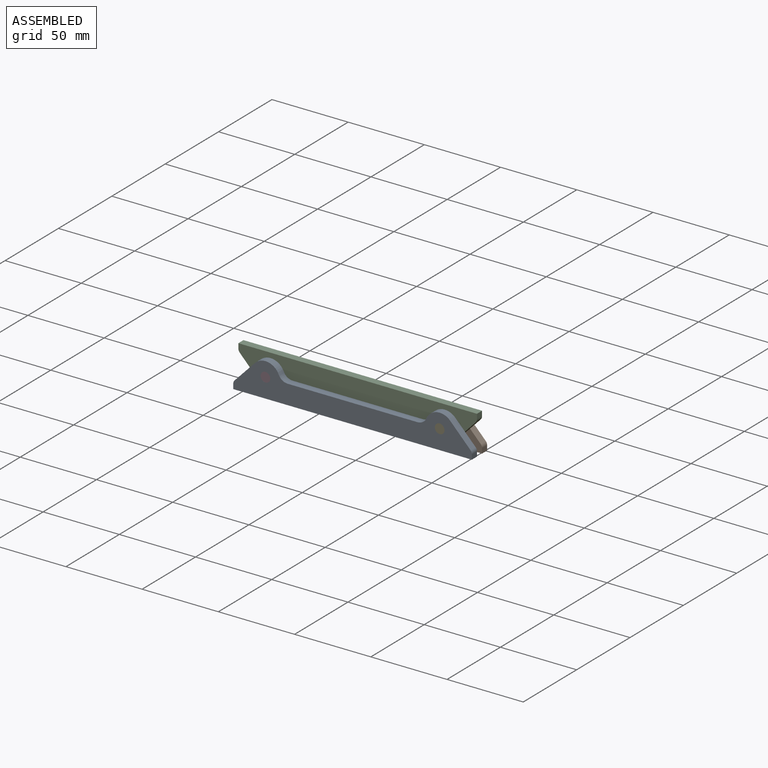
[diagram: assembled view]
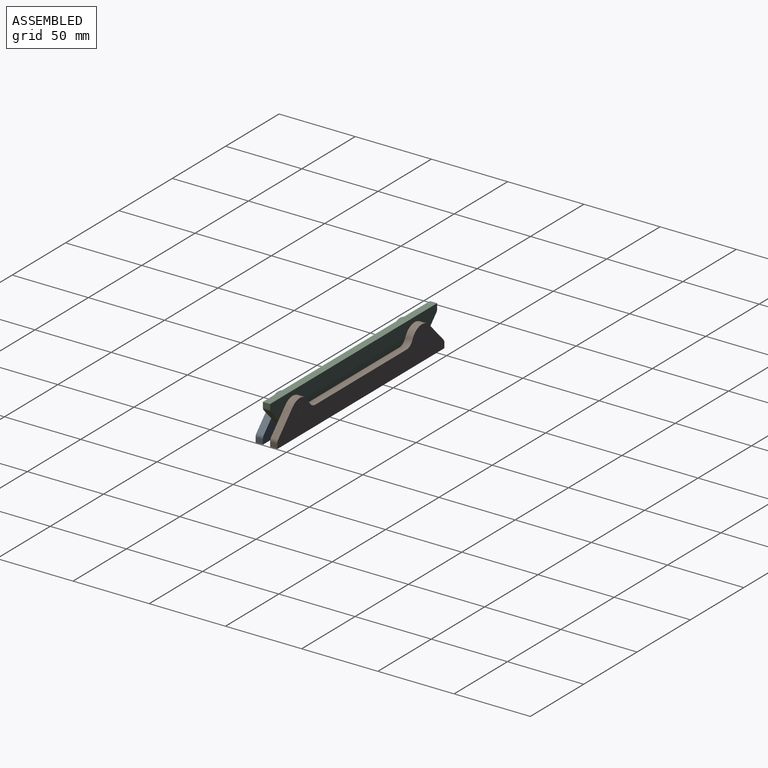
[diagram: assembled view, second angle]
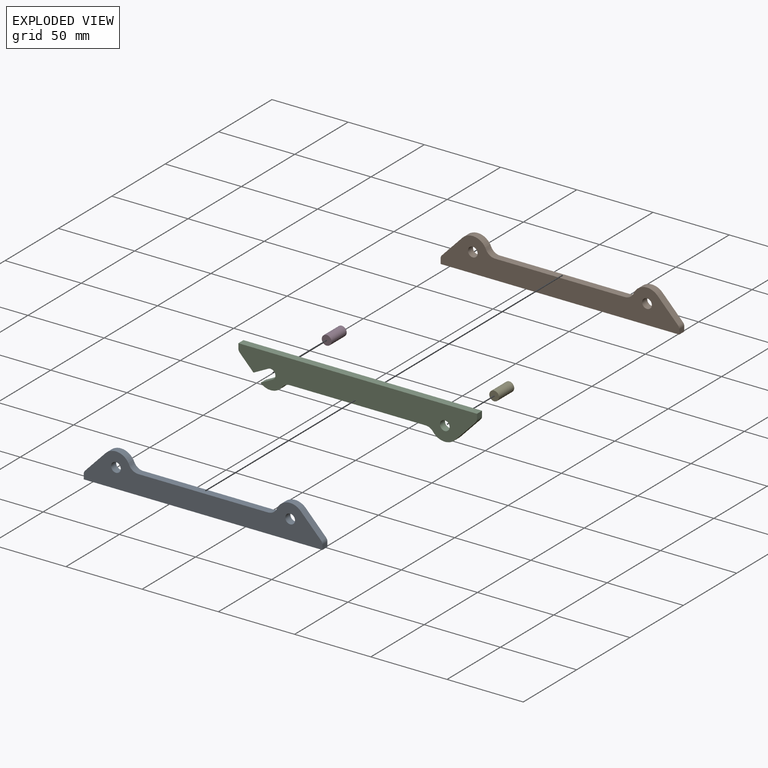
[diagram: exploded view]
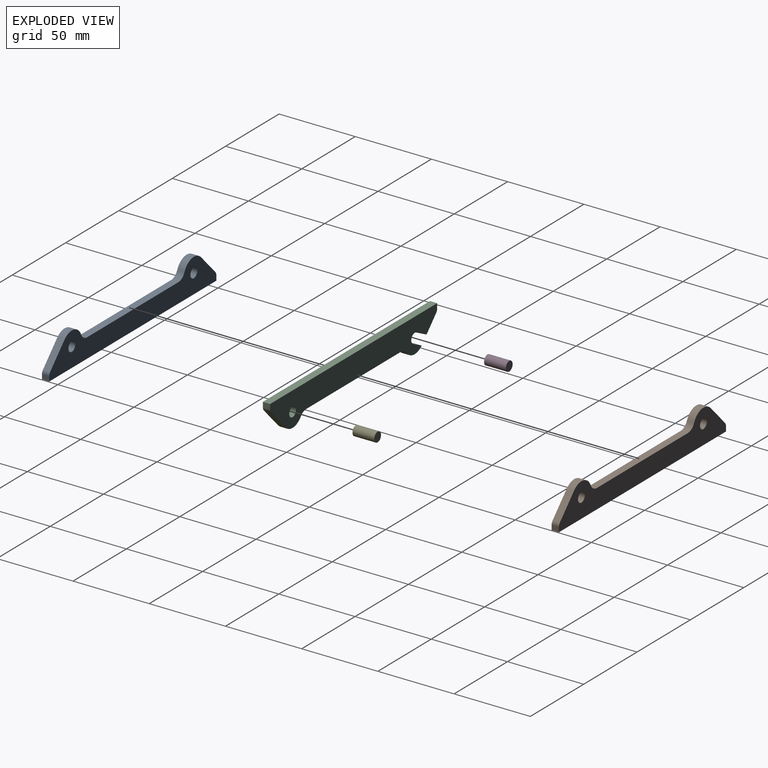
[diagram: exploded view, second angle]
ASSEMBLY  parts=5 mates=4
PART A: 16 faces, bbox 156.5x4.8x22.2 mm
  f0: cylinder r=6.35mm len=5.82mm, axis (0,1,0), area 35.1mm2, adj f1,f11,f12,f13
  f1: cylinder r=9.53mm len=15.6mm, axis (0,1,0), area 89.1mm2, adj f0,f2,f12,f13
  f2: plane 13.92x13.37mm, normal (-0.72,0,0.69), area 91.9mm2, adj f1,f3,f12,f13
  f3: cylinder r=3.17mm len=4.76mm, axis (0,1,0), area 12.9mm2, adj f2,f4,f12,f13
  f4: plane 4.76x2.9mm, normal (-1,0,0), area 13.8mm2, adj f3,f5,f12,f13
  f5: plane 156.54x4.76mm, normal (0,0,-1), area 745.5mm2, adj f4,f6,f12,f13
  f6: plane 4.76x3.18mm, normal (1,0,0), area 15.1mm2, adj f5,f7,f12,f13
  f7: cylinder r=3.17mm len=4.76mm, axis (0,1,0), area 11.6mm2, adj f6,f8,f12,f13
  f8: plane 13.92x13.37mm, normal (0.72,0,0.69), area 91.9mm2, adj f7,f9,f12,f13
  f9: cylinder r=9.53mm len=15.6mm, axis (0,1,0), area 89.1mm2, adj f8,f10,f12,f13
  f10: cylinder r=6.35mm len=5.82mm, axis (0,1,0), area 35.1mm2, adj f9,f11,f12,f13
  f11: plane 85.2x4.76mm, normal (0,0,1), area 405.8mm2, adj f0,f10,f12,f13
  f12: plane 156.55x22.23mm, normal (0,-1,0), area 2170.1mm2, adj f0,f1,f2,f3,f4,f5,f6,f7
  f13: plane 156.55x22.23mm, normal (0,1,0), area 2170.1mm2, adj f0,f1,f2,f3,f4,f5,f6,f7
  f14: cylinder r=3.17mm len=6.35mm, axis (0,1,0), area 95mm2, adj f12,f13
  f15: cylinder r=3.17mm len=6.35mm, axis (0,1,0), area 95mm2, adj f12,f13
PART B: same geometry as A
PART C: 18 faces, bbox 156.5x4.8x22.2 mm
  f0: cylinder r=9.53mm len=14.19mm, axis (0,1,0), area 76.6mm2, adj f2,f13,f14,f16
  f1: cylinder r=3.17mm len=6.01mm, axis (0,1,0), area 47.5mm2, adj f13,f14,f16,f17
  f2: cylinder r=6.35mm len=5.08mm, axis (0,1,0), area 28mm2, adj f0,f12,f13,f14
  f3: plane 9.44x9.06mm, normal (-0.72,0,0.69), area 62.3mm2, adj f4,f13,f14,f17
  f4: cylinder r=3.17mm len=4.76mm, axis (0,1,0), area 11.6mm2, adj f3,f5,f13,f14
  f5: plane 4.76x3.18mm, normal (-1,0,0), area 15.1mm2, adj f4,f6,f13,f14
  f6: plane 156.55x4.76mm, normal (0,0,-1), area 745.6mm2, adj f5,f7,f13,f14
  f7: plane 4.76x3.18mm, normal (1,0,0), area 15.1mm2, adj f6,f8,f13,f14
  f8: cylinder r=3.17mm len=4.76mm, axis (0,1,0), area 11.6mm2, adj f7,f9,f13,f14
  f9: plane 13.92x13.37mm, normal (0.72,0,0.69), area 91.9mm2, adj f8,f10,f13,f14
  f10: cylinder r=9.53mm len=14.49mm, axis (0,1,0), area 78.6mm2, adj f9,f11,f13,f14
  f11: cylinder r=6.35mm len=5.08mm, axis (0,1,0), area 28mm2, adj f10,f12,f13,f14
  f12: plane 88.9x4.76mm, normal (0,0,1), area 423.4mm2, adj f2,f11,f13,f14
  f13: plane 156.55x22.23mm, normal (0,-1,0), area 2421.9mm2, adj f0,f1,f2,f3,f4,f5,f6,f7
  f14: plane 156.55x22.23mm, normal (0,1,0), area 2421.9mm2, adj f0,f1,f2,f3,f4,f5,f6,f7
  f15: cylinder r=3.17mm len=6.35mm, axis (0,1,0), area 95mm2, adj f13,f14
  f16: plane 8.01x4.76mm, normal (-0.45,0,-0.89), area 42.8mm2, adj f0,f1,f13,f14
  f17: plane 9.74x4.94mm, normal (0.45,0,0.89), area 52mm2, adj f1,f3,f13,f14
PART D: 3 faces, bbox 6.4x14.3x6.4 mm
  f0: cylinder r=3.17mm len=14.29mm, axis (0,1,0), area 285mm2, adj f1,f2
  f1: plane 6.35x6.35mm, normal (0,-1,0), area 31.7mm2, adj f0
  f2: plane 6.35x6.35mm, normal (0,1,0), area 31.7mm2, adj f0
PART E: same geometry as D
PLACE A t=(2.07,37.06,25.46)mm
PLACE B t=(2.07,46.59,25.46)mm
PLACE C rot(axis=(-1,0,0),180deg) t=(19.98,37.06,3.41)mm
PLACE D rot(axis=(0,1,0),90deg) t=(-44.1,46.59,4.04)mm
PLACE E t=(93.26,46.59,2.43)mm
MATE fastened D.f0 <-> A.f1  axis (0,-1,0) through (-31.76,32.3,14.77)mm
MATE slider E.f0 <-> A.f9  axis (0,-1,0) through (82.54,32.3,14.77)mm
MATE pin_slot A.f1 <-> C.f0  axis (0,1,0) through (-31.76,37.06,14.77)mm
MATE pin_slot B.f1 <-> C.f0  axis (0,-1,0) through (-31.76,41.83,14.77)mm
